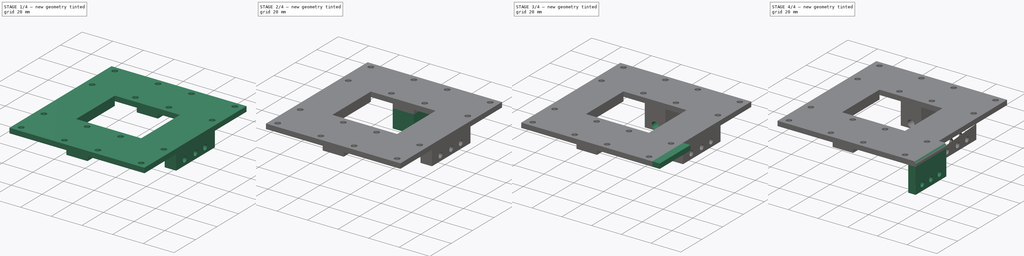
[diagram: build sequence overview — one tinted view per stage of 4, left to right]
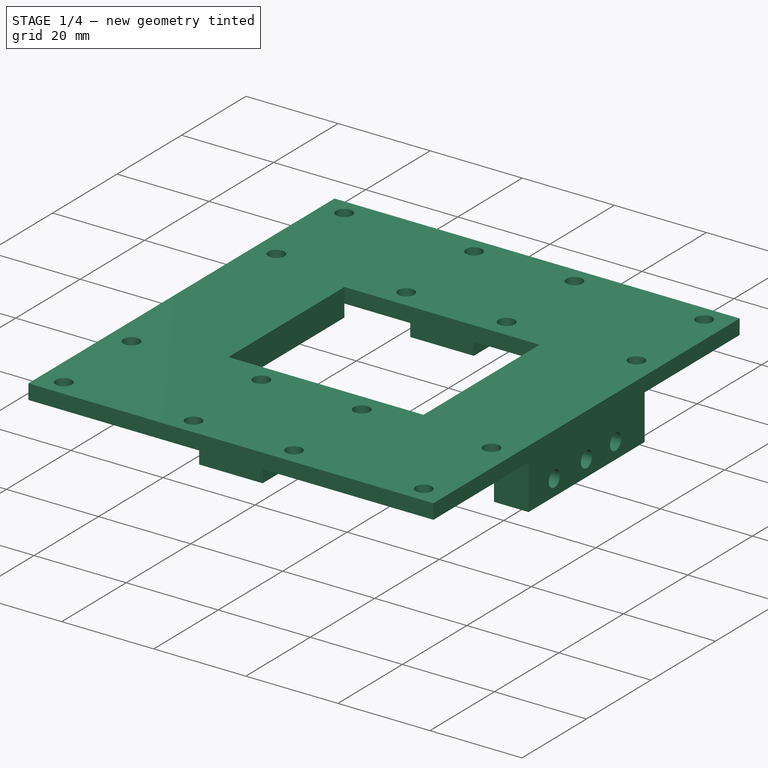
[diagram: stage 1 of 4 — iso view after this stage's code; geometry added in this stage tinted green]
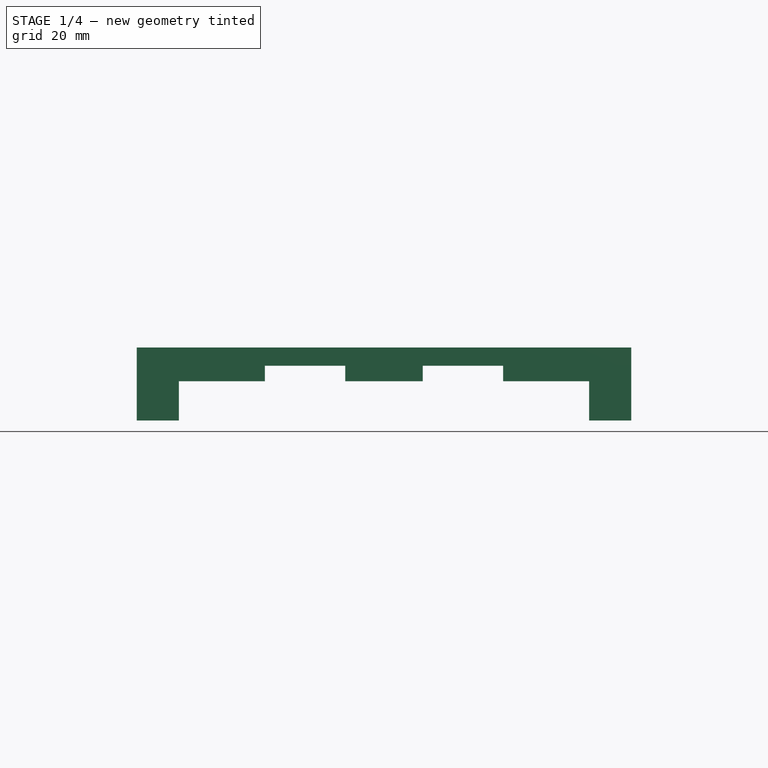
[diagram: stage 1 of 4 — front view after this stage's code; geometry added in this stage tinted green]
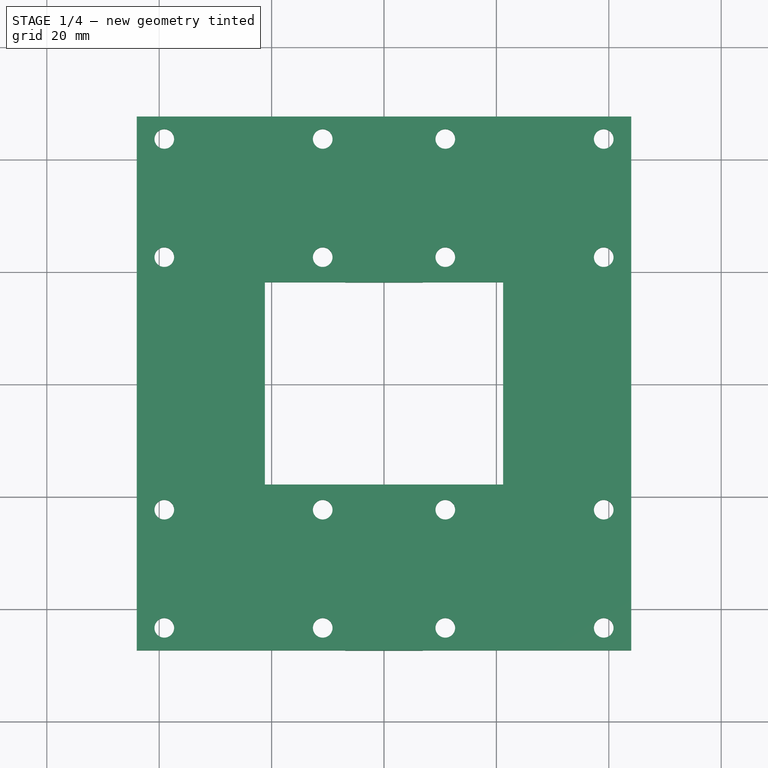
[diagram: stage 1 of 4 — top view after this stage's code; geometry added in this stage tinted green]
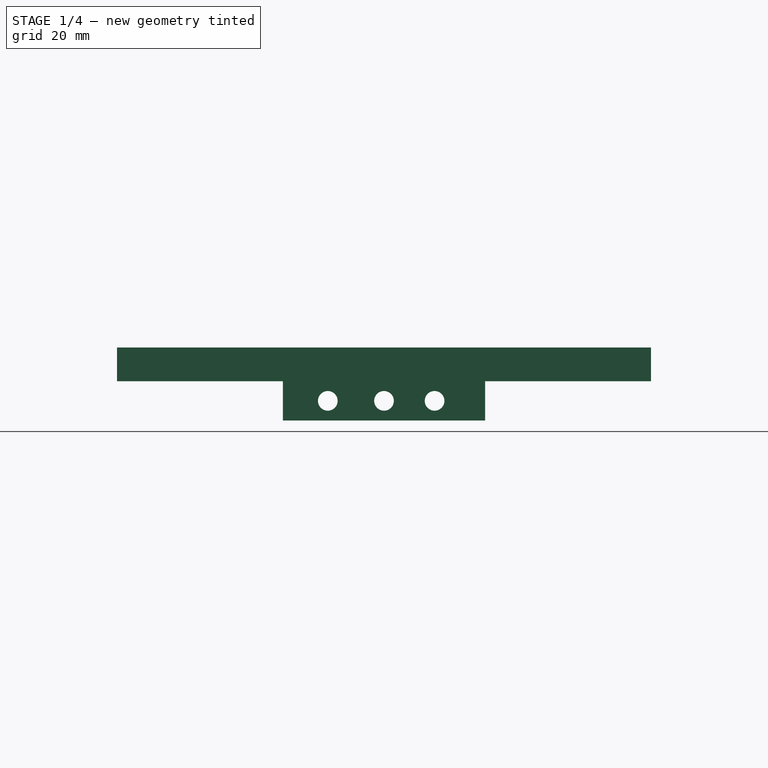
[diagram: stage 1 of 4 — right view after this stage's code; geometry added in this stage tinted green]
FCSTD DOCUMENT  (FreeCAD 0.17R12955 (Git))
Label: TC-H01-Base
License: All rights reserved
LicenseURL: http://en.wikipedia.org/wiki/All_rights_reserved
objects: Sketcher::SketchObject×13, PartDesign::Pocket×8, PartDesign::Pad×5, Part::FeaturePython×2, PartDesign::Fillet×1, PartDesign::Body×1
note: 43 computed .brp shape members not serialized (recipe doc carries the construction recipe); baked Part::Feature solids carry a one-line shape summary decoded from their .brp

FEATURE [Sketcher::SketchObject] Sketch013  label="Base001"
  MapMode = 5
  sketch-geometry (24):
    g0: LineSegment StartX=-44 StartY=47.5 StartZ=0 EndX=44 EndY=47.5 EndZ=0
    g1: LineSegment StartX=44 StartY=47.5 StartZ=0 EndX=44 EndY=-47.5 EndZ=0
    g2: LineSegment StartX=44 StartY=-47.5 StartZ=0 EndX=-44 EndY=-47.5 EndZ=0
    g3: LineSegment StartX=-44 StartY=-47.5 StartZ=0 EndX=-44 EndY=47.5 EndZ=0
    g4: Circle CenterX=-39.0963 CenterY=43.5 CenterZ=0 NormalX=0 NormalY=0 NormalZ=1 AngleXU=0 Radius=1.75
    g5: Circle CenterX=-39.0963 CenterY=22.4695 CenterZ=0 NormalX=0 NormalY=0 NormalZ=1 AngleXU=0 Radius=1.75
    g6: Circle CenterX=-10.9036 CenterY=22.4695 CenterZ=0 NormalX=0 NormalY=0 NormalZ=1 AngleXU=0 Radius=1.75
    g7: Circle CenterX=-10.9036 CenterY=43.5 CenterZ=0 NormalX=0 NormalY=0 NormalZ=1 AngleXU=0 Radius=1.75
    g8: Circle CenterX=10.9036 CenterY=43.5 CenterZ=0 NormalX=0 NormalY=0 NormalZ=1 AngleXU=0 Radius=1.75
    g9: Circle CenterX=10.9036 CenterY=22.4695 CenterZ=0 NormalX=0 NormalY=0 NormalZ=1 AngleXU=0 Radius=1.75
    g10: Circle CenterX=39.0963 CenterY=43.5 CenterZ=0 NormalX=0 NormalY=0 NormalZ=1 AngleXU=0 Radius=1.75
    g11: Circle CenterX=39.0963 CenterY=22.4695 CenterZ=0 NormalX=0 NormalY=0 NormalZ=1 AngleXU=0 Radius=1.75
    g12: Circle CenterX=-39.0963 CenterY=-22.4695 CenterZ=0 NormalX=0 NormalY=0 NormalZ=1 AngleXU=0 Radius=1.75
    g13: Circle CenterX=-10.9036 CenterY=-22.4695 CenterZ=0 NormalX=0 NormalY=0 NormalZ=1 AngleXU=0 Radius=1.75
    g14: Circle CenterX=-39.0963 CenterY=-43.5 CenterZ=0 NormalX=0 NormalY=0 NormalZ=1 AngleXU=0 Radius=1.75
    g15: Circle CenterX=-10.9036 CenterY=-43.5 CenterZ=0 NormalX=0 NormalY=0 NormalZ=1 AngleXU=0 Radius=1.75
    g16: Circle CenterX=10.9036 CenterY=-22.4695 CenterZ=0 NormalX=0 NormalY=0 NormalZ=1 AngleXU=0 Radius=1.75
    g17: Circle CenterX=10.9036 CenterY=-43.5 CenterZ=0 NormalX=0 NormalY=0 NormalZ=1 AngleXU=0 Radius=1.75
    g18: Circle CenterX=39.0963 CenterY=-22.4695 CenterZ=0 NormalX=0 NormalY=0 NormalZ=1 AngleXU=0 Radius=1.75
    g19: Circle CenterX=39.0963 CenterY=-43.5 CenterZ=0 NormalX=0 NormalY=0 NormalZ=1 AngleXU=0 Radius=1.75
    g20: LineSegment StartX=-21.2 StartY=18 StartZ=0 EndX=21.2 EndY=18 EndZ=0
    g21: LineSegment StartX=21.2 StartY=18 StartZ=0 EndX=21.2 EndY=-18 EndZ=0
    g22: LineSegment StartX=21.2 StartY=-18 StartZ=0 EndX=-21.2 EndY=-18 EndZ=0
    g23: LineSegment StartX=-21.2 StartY=-18 StartZ=0 EndX=-21.2 EndY=18 EndZ=0
  constraints (58):
    c: Coincident(g0,g1)
    c: Coincident(g1,g2)
    c: Coincident(g2,g3)
    c: Coincident(g3,g0)
    c: Horizontal(g0)
    c: Horizontal(g2)
    c: Vertical(g1)
    c: Vertical(g3)
    c: DistanceX(g0,g0) = 88
    c: DistanceY(g2,g0) = 95
    c: Symmetric(g0,g0,g-2)
    c: Symmetric(g2,g0,g-1)
    c: Radius(g4) = 1.75
    c: Equal(g4, g5-g19) x15
    c: DistanceY(g4,g0) = 4
    c: DistanceY(g5,g4) = 21.0305
    c: DistanceY(g6,g7) = 21.0305
    c: DistanceY(g9,g8) = 21.0305
    c: DistanceY(g11,g10) = 21.0305
    c: DistanceY(g14,g12) = 21.0305
    c: DistanceY(g15,g13) = 21.0305
    c: DistanceY(g17,g16) = 21.0305
    c: DistanceY(g19,g18) = 21.0305
    c: DistanceX(g4,g7) = 28.1927
    c: DistanceX(g5,g6) = 28.1927
    c: DistanceY(g7,g0) = 4
    c: DistanceY(g10,g0) = 4
    c: DistanceY(g8,g0) = 4
    c: DistanceX(g8,g10) = 28.1927
    c: DistanceX(g9,g11) = 28.1927
    c: DistanceX(g16,g18) = 28.1927
    c: DistanceX(g17,g19) = 28.1927
    c: DistanceY(g1,g19) = 4
    c: DistanceY(g1,g17) = 4
    c: DistanceY(g2,g14) = 4
    c: DistanceY(g2,g15) = 4
    c: DistanceX(g12,g13) = 28.1927
    c: DistanceX(g14,g15) = 28.1927
    c: Coincident(g20,g21)
    c: Coincident(g21,g22)
    c: Coincident(g22,g23)
    c: Coincident(g23,g20)
    c: Horizontal(g20)
    c: Horizontal(g22)
    c: Vertical(g21)
    c: Vertical(g23)
    c: DistanceX(g0,g20) = 22.8
    c: DistanceX(g20,g0) = 22.8
    c: DistanceY(g1,g21) = 29.5
    c: DistanceY(g20,g0) = 29.5
    c: DistanceX(g7,g-1) = 10.9036
    c: DistanceX(g6,g-1) = 10.9036
    c: DistanceX(g-1,g8) = 10.9036
    c: DistanceX(g-1,g9) = 10.9036
    c: DistanceX(g13,g-1) = 10.9036
    c: DistanceX(g15,g-1) = 10.9036
    c: DistanceX(g-1,g16) = 10.9036
    c: DistanceX(g-1,g17) = 10.9036
FEATURE [PartDesign::Pad] Pad  label="Base"
  Length = 6
  Length2 = 100
  Profile = -> Sketch013
  Type = 0
FEATURE [Sketcher::SketchObject] Sketch
  ExternalGeometry = -> [Pad]
  MapMode = 5
  Placement = pos=(0,0,0) rot=(1,0,0;3.14159rad)
  Support = -> [Pad]
  sketch-geometry (16):
    g0: LineSegment StartX=-44 StartY=-18 StartZ=0 EndX=-6.9 EndY=-18 EndZ=0
    g1: LineSegment StartX=-6.9 StartY=-18 StartZ=0 EndX=-6.9 EndY=-47.5 EndZ=0
    g2: LineSegment StartX=-6.9 StartY=-47.5 StartZ=0 EndX=-44 EndY=-47.5 EndZ=0
    g3: LineSegment StartX=-44 StartY=-47.5 StartZ=0 EndX=-44 EndY=-18 EndZ=0
    g4: LineSegment StartX=6.9 StartY=-18 StartZ=0 EndX=44 EndY=-18 EndZ=0
    g5: LineSegment StartX=44 StartY=-18 StartZ=0 EndX=44 EndY=-47.5 EndZ=0
    g6: LineSegment StartX=44 StartY=-47.5 StartZ=0 EndX=6.9 EndY=-47.5 EndZ=0
    g7: LineSegment StartX=6.9 StartY=-47.5 StartZ=0 EndX=6.9 EndY=-18 EndZ=0
    g8: LineSegment StartX=-44 StartY=47.5 StartZ=0 EndX=-6.9 EndY=47.5 EndZ=0
    g9: LineSegment StartX=-6.9 StartY=47.5 StartZ=0 EndX=-6.9 EndY=18 EndZ=0
    g10: LineSegment StartX=-6.9 StartY=18 StartZ=0 EndX=-44 EndY=18 EndZ=0
    g11: LineSegment StartX=-44 StartY=18 StartZ=0 EndX=-44 EndY=47.5 EndZ=0
    g12: LineSegment StartX=6.9 StartY=47.5 StartZ=0 EndX=44 EndY=47.5 EndZ=0
    g13: LineSegment StartX=44 StartY=47.5 StartZ=0 EndX=44 EndY=18 EndZ=0
    g14: LineSegment StartX=44 StartY=18 StartZ=0 EndX=6.9 EndY=18 EndZ=0
    g15: LineSegment StartX=6.9 StartY=18 StartZ=0 EndX=6.9 EndY=47.5 EndZ=0
  constraints (44):
    c: Coincident(g0,g1)
    c: Coincident(g1,g2)
    c: Coincident(g2,g3)
    c: Coincident(g3,g0)
    c: Horizontal(g0)
    c: Horizontal(g2)
    c: Vertical(g1)
    c: Vertical(g3)
    c: DistanceY(g2,g0) = 29.5
    c: DistanceX(g0,g0) = 37.1
    c: Coincident(g2,g-4)
    c: Coincident(g4,g5)
    c: Coincident(g5,g6)
    c: Coincident(g6,g7)
    c: Coincident(g7,g4)
    c: Horizontal(g4)
    c: Horizontal(g6)
    c: Vertical(g5)
    c: Vertical(g7)
    c: DistanceX(g4,g4) = 37.1
    c: DistanceY(g5,g4) = 29.5
    c: Coincident(g5,g-4)
    c: Coincident(g8,g9)
    c: Coincident(g9,g10)
    c: Coincident(g10,g11)
    c: Coincident(g11,g8)
    c: Horizontal(g8)
    c: Horizontal(g10)
    c: Vertical(g9)
    c: Vertical(g11)
    c: DistanceX(g8,g8) = 37.1
    c: DistanceY(g10,g8) = 29.5
    c: Coincident(g8,g-3)
    c: Coincident(g12,g13)
    c: Coincident(g13,g14)
    c: Coincident(g14,g15)
    c: Coincident(g15,g12)
    c: Horizontal(g12)
    c: Horizontal(g14)
    c: Vertical(g13)
    c: Vertical(g15)
    c: DistanceX(g12,g12) = 37.1
    c: DistanceY(g13,g12) = 29.5
    c: Coincident(g12,g-5)
FEATURE [PartDesign::Pocket] Pocket  label="Bearing inserts"
  BaseFeature = -> Pad
  Length = 2.75
  Profile = -> Sketch
  Type = 0
FEATURE [Sketcher::SketchObject] Sketch014
  ExternalGeometry = -> [Pocket]
  MapMode = 5
  Placement = pos=(0,0,0) rot=(1,0,0;3.14159rad)
  Support = -> [Pocket]
  sketch-geometry (8):
    g0: LineSegment StartX=-44 StartY=18 StartZ=0 EndX=-36.5 EndY=18 EndZ=0
    g1: LineSegment StartX=-36.5 StartY=18 StartZ=0 EndX=-36.5 EndY=-18 EndZ=0
    g2: LineSegment StartX=-36.5 StartY=-18 StartZ=0 EndX=-44 EndY=-18 EndZ=0
    g3: LineSegment StartX=-44 StartY=-18 StartZ=0 EndX=-44 EndY=18 EndZ=0
    g4: LineSegment StartX=36.5 StartY=18 StartZ=0 EndX=44 EndY=18 EndZ=0
    g5: LineSegment StartX=44 StartY=18 StartZ=0 EndX=44 EndY=-18 EndZ=0
    g6: LineSegment StartX=44 StartY=-18 StartZ=0 EndX=36.5 EndY=-18 EndZ=0
    g7: LineSegment StartX=36.5 StartY=-18 StartZ=0 EndX=36.5 EndY=18 EndZ=0
  constraints (22):
    c: Coincident(g0,g1)
    c: Coincident(g1,g2)
    c: Coincident(g2,g3)
    c: Coincident(g3,g0)
    c: Horizontal(g0)
    c: Horizontal(g2)
    c: Vertical(g1)
    c: Vertical(g3)
    c: Coincident(g4,g5)
    c: Coincident(g5,g6)
    c: Coincident(g6,g7)
    c: Coincident(g7,g4)
    c: Horizontal(g4)
    c: Horizontal(g6)
    c: Vertical(g5)
    c: Vertical(g7)
    c: DistanceX(g0,g0) = 7.5
    c: DistanceX(g4,g4) = 7.5
    c: Coincident(g0,g-3)
    c: Coincident(g2,g-4)
    c: Coincident(g4,g-6)
    c: Coincident(g5,g-5)
FEATURE [PartDesign::Pad] Pad001  label="Fan mounts"
  BaseFeature = -> Pocket
  Length = 7
  Length2 = 100
  Profile = -> Sketch014
  Type = 0
FEATURE [Sketcher::SketchObject] Sketch015
  ExternalGeometry = -> [Pad001]
  MapMode = 5
  Placement = pos=(44,0,0) rot=(0.57735,0.57735,0.57735;2.0944rad)
  Support = -> [Pad001]
  sketch-geometry (3):
    g0: Circle CenterX=-10 CenterY=-3.5 CenterZ=0 NormalX=0 NormalY=0 NormalZ=1 AngleXU=0 Radius=1.75
    g1: Circle CenterX=0 CenterY=-3.5 CenterZ=0 NormalX=0 NormalY=0 NormalZ=1 AngleXU=0 Radius=1.75
    g2: Circle CenterX=9 CenterY=-3.5 CenterZ=0 NormalX=0 NormalY=0 NormalZ=1 AngleXU=0 Radius=1.75
  constraints (9):
    c: Radius(g0) = 1.75
    c: Radius(g2) = 1.75
    c: Equal(g2,g1)
    c: PointOnObject(g1,g-2)
    c: DistanceY(g0,g-3) = 3.5
    c: DistanceY(g1,g-1) = 3.5
    c: DistanceY(g2,g-4) = 3.5
    c: DistanceX(g0,g-1) = 10
    c: DistanceX(g-1,g2) = 9
FEATURE [PartDesign::Pocket] Pocket001  label="Fan mount holes"
  BaseFeature = -> Pad001
  Length = 5
  Profile = -> Sketch015
  Type = 1
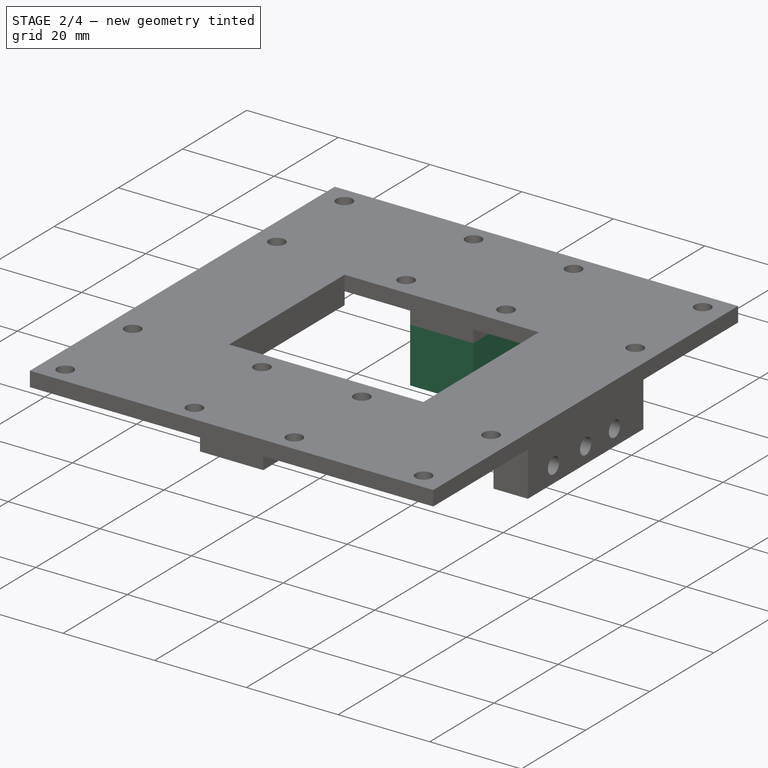
[diagram: stage 2 of 4 — iso view after this stage's code; geometry added in this stage tinted green]
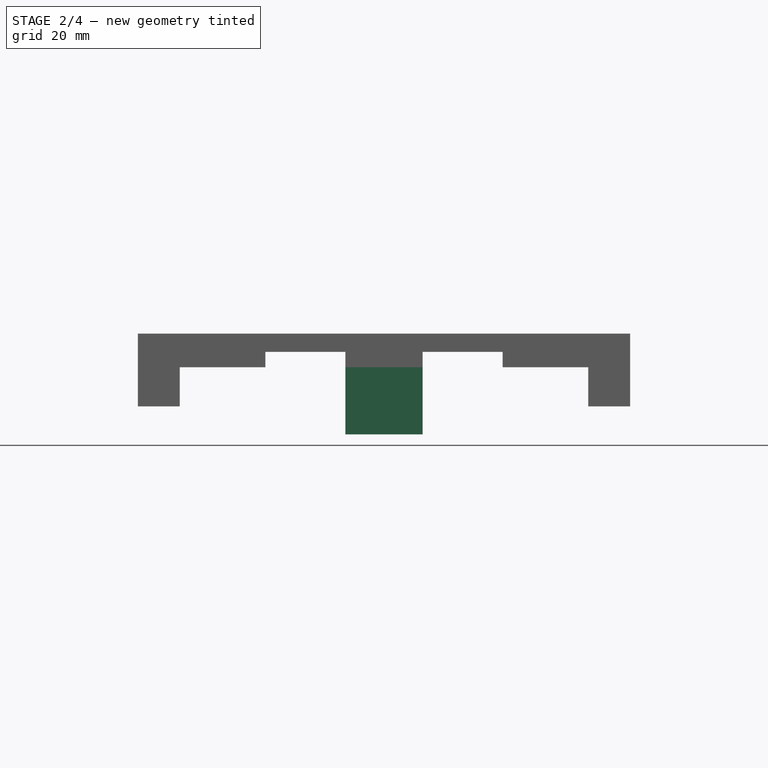
[diagram: stage 2 of 4 — front view after this stage's code; geometry added in this stage tinted green]
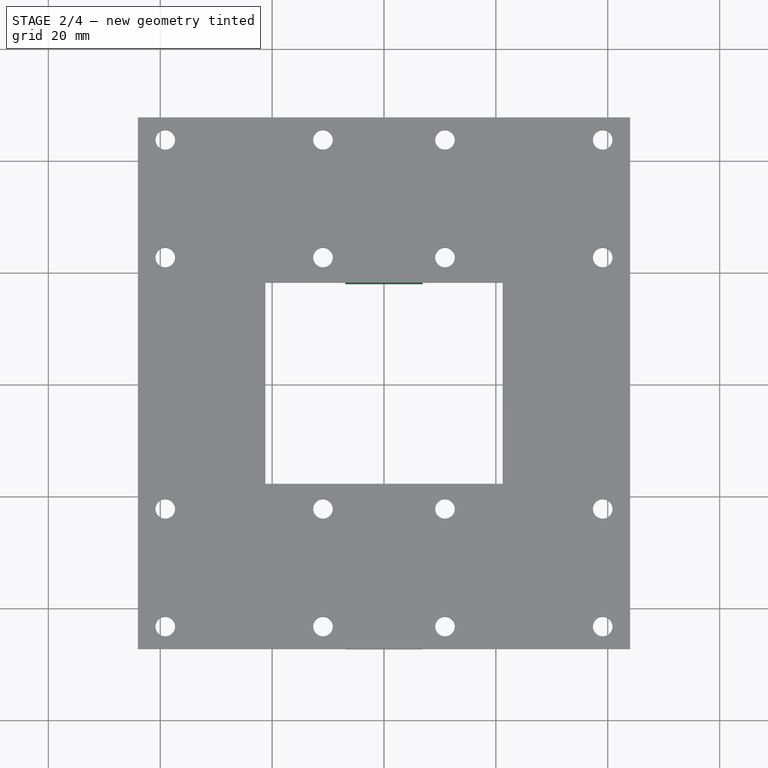
[diagram: stage 2 of 4 — top view after this stage's code; geometry added in this stage tinted green]
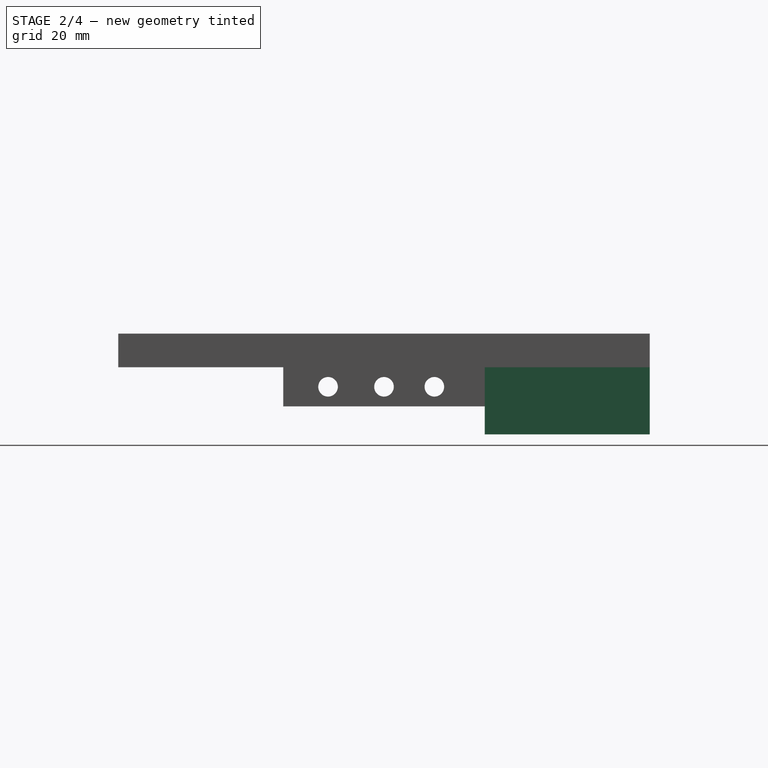
[diagram: stage 2 of 4 — right view after this stage's code; geometry added in this stage tinted green]
FEATURE [Sketcher::SketchObject] Sketch016
  ExternalGeometry = -> [Pocket001]
  MapMode = 5
  Placement = pos=(-36.5,0,0) rot=(0.57735,0.57735,0.57735;2.0944rad)
  Support = -> [Pocket001]
  sketch-geometry (21):
    g0: LineSegment StartX=-8.4 StartY=-6.27128 StartZ=0 EndX=-6.8 EndY=-3.5 EndZ=0
    g1: LineSegment StartX=-6.8 StartY=-3.5 StartZ=0 EndX=-8.4 EndY=-0.728719 EndZ=0
    g2: LineSegment StartX=-8.4 StartY=-0.728719 StartZ=0 EndX=-11.6 EndY=-0.728719 EndZ=0
    g3: LineSegment StartX=-11.6 StartY=-0.728719 StartZ=0 EndX=-13.2 EndY=-3.5 EndZ=0
    g4: LineSegment StartX=-13.2 StartY=-3.5 StartZ=0 EndX=-11.6 EndY=-6.27128 EndZ=0
    g5: LineSegment StartX=-11.6 StartY=-6.27128 StartZ=0 EndX=-8.4 EndY=-6.27128 EndZ=0
    g6: Circle [constr] CenterX=-10 CenterY=-3.5 CenterZ=0 NormalX=0 NormalY=0 NormalZ=1 AngleXU=0 Radius=3.2
    g7: LineSegment StartX=1.6 StartY=-6.27128 StartZ=0 EndX=3.2 EndY=-3.5 EndZ=0
    g8: LineSegment StartX=3.2 StartY=-3.5 StartZ=0 EndX=1.6 EndY=-0.728719 EndZ=0
    g9: LineSegment StartX=1.6 StartY=-0.728719 StartZ=0 EndX=-1.6 EndY=-0.728719 EndZ=0
    g10: LineSegment StartX=-1.6 StartY=-0.728719 StartZ=0 EndX=-3.2 EndY=-3.5 EndZ=0
    g11: LineSegment StartX=-3.2 StartY=-3.5 StartZ=0 EndX=-1.6 EndY=-6.27128 EndZ=0
    g12: LineSegment StartX=-1.6 StartY=-6.27128 StartZ=0 EndX=1.6 EndY=-6.27128 EndZ=0
    g13: Circle [constr] CenterX=0 CenterY=-3.5 CenterZ=0 NormalX=0 NormalY=0 NormalZ=1 AngleXU=0 Radius=3.2
    g14: LineSegment StartX=10.6 StartY=-6.27128 StartZ=0 EndX=12.2 EndY=-3.5 EndZ=0
    g15: LineSegment StartX=12.2 StartY=-3.5 StartZ=0 EndX=10.6 EndY=-0.728719 EndZ=0
    g16: LineSegment StartX=10.6 StartY=-0.728719 StartZ=0 EndX=7.4 EndY=-0.728719 EndZ=0
    g17: LineSegment StartX=7.4 StartY=-0.728719 StartZ=0 EndX=5.8 EndY=-3.5 EndZ=0
    g18: LineSegment StartX=5.8 StartY=-3.5 StartZ=0 EndX=7.4 EndY=-6.27128 EndZ=0
    g19: LineSegment StartX=7.4 StartY=-6.27128 StartZ=0 EndX=10.6 EndY=-6.27128 EndZ=0
    g20: Circle [constr] CenterX=9 CenterY=-3.5 CenterZ=0 NormalX=0 NormalY=0 NormalZ=1 AngleXU=0 Radius=3.2
  constraints (48):
    c: Coincident(g0,g1)
    c: Coincident(g1,g2)
    c: Coincident(g2,g3)
    c: Coincident(g3,g4)
    c: Coincident(g4,g5)
    c: Coincident(g5,g0)
    c: Equal(g0, g1-g5) x5
    c: PointOnObject(g0,g6)
    c: PointOnObject(g1,g6)
    c: PointOnObject(g2,g6)
    c: PointOnObject(g3,g6)
    c: PointOnObject(g4,g6)
    c: PointOnObject(g5,g6)
    c: Coincident(g-3,g6)
    c: Coincident(g7,g8)
    c: Coincident(g8,g9)
    c: Coincident(g9,g10)
    c: Coincident(g10,g11)
    c: Coincident(g11,g12)
    c: Coincident(g12,g7)
    c: Equal(g7, g8-g12) x5
    c: PointOnObject(g7,g13)
    c: PointOnObject(g8,g13)
    c: PointOnObject(g9,g13)
    c: PointOnObject(g10,g13)
    c: PointOnObject(g11,g13)
    c: PointOnObject(g12,g13)
    c: Coincident(g13,g-4)
    c: Coincident(g14,g15)
    c: Coincident(g15,g16)
    c: Coincident(g16,g17)
    c: Coincident(g17,g18)
    c: Coincident(g18,g19)
    c: Coincident(g19,g14)
    c: Equal(g14, g15-g19) x5
    c: PointOnObject(g14,g20)
    c: PointOnObject(g15,g20)
    c: PointOnObject(g16,g20)
    c: PointOnObject(g17,g20)
    c: PointOnObject(g18,g20)
    c: PointOnObject(g19,g20)
    c: Coincident(g20,g-5)
    c: Radius(g20) = 3.2
    c: Equal(g20,g13)
    c: Equal(g20,g6)
    c: Parallel(g2,g-1)
    c: Parallel(g9,g-1)
    c: Parallel(g16,g-1)
FEATURE [PartDesign::Pocket] Pocket002  label="Fan M3 nuts001"
  BaseFeature = -> Pocket001
  Length = 2.5
  Profile = -> Sketch016
  Type = 0
FEATURE [Sketcher::SketchObject] Sketch017
  ExternalGeometry = -> [Pocket002]
  MapMode = 5
  Placement = pos=(36.5,0,0) rot=(0.57735,-0.57735,-0.57735;2.0944rad)
  Support = -> [Pocket002]
  sketch-geometry (21):
    g0: LineSegment StartX=-5.8 StartY=-3.5 StartZ=0 EndX=-7.4 EndY=-0.728719 EndZ=0
    g1: LineSegment StartX=-7.4 StartY=-0.728719 StartZ=0 EndX=-10.6 EndY=-0.728719 EndZ=0
    g2: LineSegment StartX=-10.6 StartY=-0.728719 StartZ=0 EndX=-12.2 EndY=-3.5 EndZ=0
    g3: LineSegment StartX=-12.2 StartY=-3.5 StartZ=0 EndX=-10.6 EndY=-6.27128 EndZ=0
    g4: LineSegment StartX=-10.6 StartY=-6.27128 StartZ=0 EndX=-7.4 EndY=-6.27128 EndZ=0
    g5: LineSegment StartX=-7.4 StartY=-6.27128 StartZ=0 EndX=-5.8 EndY=-3.5 EndZ=0
    g6: Circle [constr] CenterX=-9 CenterY=-3.5 CenterZ=0 NormalX=0 NormalY=0 NormalZ=1 AngleXU=0 Radius=3.2
    g7: LineSegment StartX=1.6 StartY=-6.27128 StartZ=0 EndX=3.2 EndY=-3.5 EndZ=0
    g8: LineSegment StartX=3.2 StartY=-3.5 StartZ=0 EndX=1.6 EndY=-0.728719 EndZ=0
    g9: LineSegment StartX=1.6 StartY=-0.728719 StartZ=0 EndX=-1.6 EndY=-0.728719 EndZ=0
    g10: LineSegment StartX=-1.6 StartY=-0.728719 StartZ=0 EndX=-3.2 EndY=-3.5 EndZ=0
    g11: LineSegment StartX=-3.2 StartY=-3.5 StartZ=0 EndX=-1.6 EndY=-6.27128 EndZ=0
    g12: LineSegment StartX=-1.6 StartY=-6.27128 StartZ=0 EndX=1.6 EndY=-6.27128 EndZ=0
    g13: Circle [constr] CenterX=0 CenterY=-3.5 CenterZ=0 NormalX=0 NormalY=0 NormalZ=1 AngleXU=0 Radius=3.2
    g14: LineSegment StartX=11.6 StartY=-6.27128 StartZ=0 EndX=13.2 EndY=-3.5 EndZ=0
    g15: LineSegment StartX=13.2 StartY=-3.5 StartZ=0 EndX=11.6 EndY=-0.728719 EndZ=0
    g16: LineSegment StartX=11.6 StartY=-0.728719 StartZ=0 EndX=8.4 EndY=-0.728719 EndZ=0
    g17: LineSegment StartX=8.4 StartY=-0.728719 StartZ=0 EndX=6.8 EndY=-3.5 EndZ=0
    g18: LineSegment StartX=6.8 StartY=-3.5 StartZ=0 EndX=8.4 EndY=-6.27128 EndZ=0
    g19: LineSegment StartX=8.4 StartY=-6.27128 StartZ=0 EndX=11.6 EndY=-6.27128 EndZ=0
    g20: Circle [constr] CenterX=10 CenterY=-3.5 CenterZ=0 NormalX=0 NormalY=0 NormalZ=1 AngleXU=0 Radius=3.2
  constraints (48):
    c: Coincident(g0,g1)
    c: Coincident(g1,g2)
    c: Coincident(g2,g3)
    c: Coincident(g3,g4)
    c: Coincident(g4,g5)
    c: Coincident(g5,g0)
    c: Equal(g0, g1-g5) x5
    c: PointOnObject(g0,g6)
    c: PointOnObject(g1,g6)
    c: PointOnObject(g2,g6)
    c: PointOnObject(g3,g6)
    c: PointOnObject(g4,g6)
    c: PointOnObject(g5,g6)
    c: Coincident(g7,g8)
    c: Coincident(g8,g9)
    c: Coincident(g9,g10)
    c: Coincident(g10,g11)
    c: Coincident(g11,g12)
    c: Coincident(g12,g7)
    c: Equal(g7, g8-g12) x5
    c: PointOnObject(g7,g13)
    c: PointOnObject(g8,g13)
    c: PointOnObject(g9,g13)
    c: PointOnObject(g10,g13)
    c: PointOnObject(g11,g13)
    c: PointOnObject(g12,g13)
    c: Coincident(g14,g15)
    c: Coincident(g15,g16)
    c: Coincident(g16,g17)
    c: Coincident(g17,g18)
    c: Coincident(g18,g19)
    c: Coincident(g19,g14)
    c: Equal(g14, g15-g19) x5
    c: PointOnObject(g14,g20)
    c: PointOnObject(g15,g20)
    c: PointOnObject(g16,g20)
    c: PointOnObject(g17,g20)
    c: PointOnObject(g18,g20)
    c: PointOnObject(g19,g20)
    c: Radius(g6) = 3.2
    c: Equal(g6,g13)
    c: Equal(g6,g20)
    c: Coincident(g6,g-3)
    c: Coincident(g13,g-4)
    c: Coincident(g20,g-5)
    c: Parallel(g1,g-1)
    c: Parallel(g9,g-1)
    c: Parallel(g16,g-1)
FEATURE [PartDesign::Pocket] Pocket003  label="Fan M3 nuts002"
  BaseFeature = -> Pocket002
  Length = 2.5
  Profile = -> Sketch017
  Type = 0
FEATURE [Sketcher::SketchObject] Sketch018
  ExternalGeometry = -> [Pocket003]
  MapMode = 5
  Placement = pos=(0,0,0) rot=(1,0,0;3.14159rad)
  Support = -> [Pocket003]
  sketch-geometry (6):
    g0: LineSegment StartX=-6.9 StartY=-18 StartZ=0 EndX=6.9 EndY=-18 EndZ=0
    g1: LineSegment StartX=6.9 StartY=-18 StartZ=0 EndX=6.9 EndY=-47.5 EndZ=0
    g2: LineSegment StartX=6.9 StartY=-47.5 StartZ=0 EndX=-6.9 EndY=-47.5 EndZ=0
    g3: LineSegment StartX=-6.9 StartY=-47.5 StartZ=0 EndX=-6.9 EndY=-18 EndZ=0
    g4: Circle CenterX=-3.5 CenterY=-42.5 CenterZ=0 NormalX=0 NormalY=0 NormalZ=1 AngleXU=0 Radius=0.85
    g5: Circle CenterX=3.5 CenterY=-42.5 CenterZ=0 NormalX=0 NormalY=0 NormalZ=1 AngleXU=0 Radius=0.85
  constraints (15):
    c: Coincident(g0,g1)
    c: Coincident(g1,g2)
    c: Coincident(g2,g3)
    c: Coincident(g3,g0)
    c: Horizontal(g0)
    c: Horizontal(g2)
    c: Vertical(g1)
    c: Vertical(g3)
    c: Coincident(g0,g-3)
    c: Coincident(g1,g-4)
    c: Radius(g4) = 0.85
    c: Equal(g4,g5)
    c: DistanceX(g4,g5) = 7
    c: Symmetric(g4,g5,g-2)
    c: DistanceY(g2,g4) = 5
FEATURE [PartDesign::Pad] Pad002  label="X-endstop mounting block"
  BaseFeature = -> Pocket003
  Length = 12
  Length2 = 100
  Profile = -> Sketch018
  Type = 0
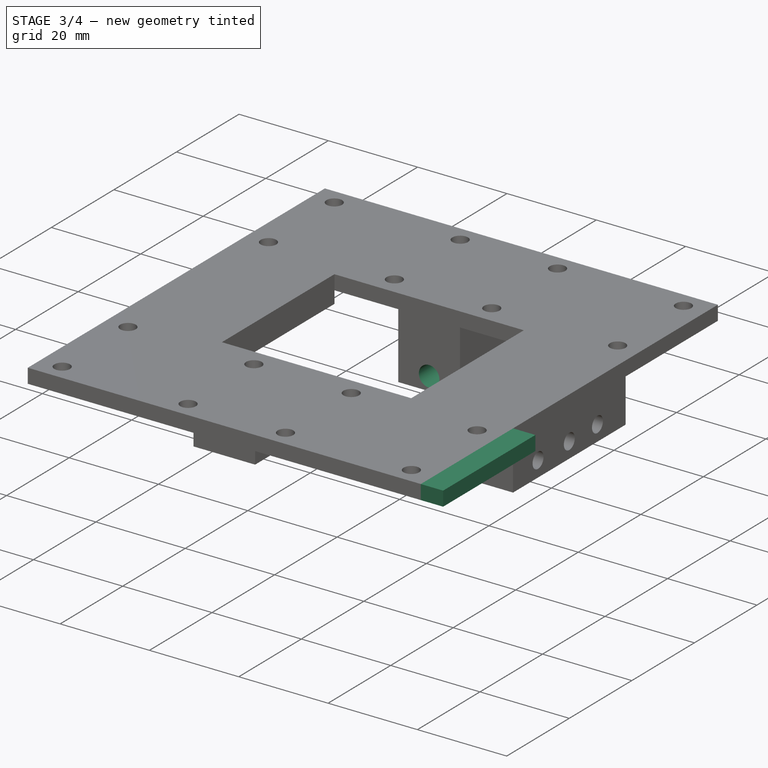
[diagram: stage 3 of 4 — iso view after this stage's code; geometry added in this stage tinted green]
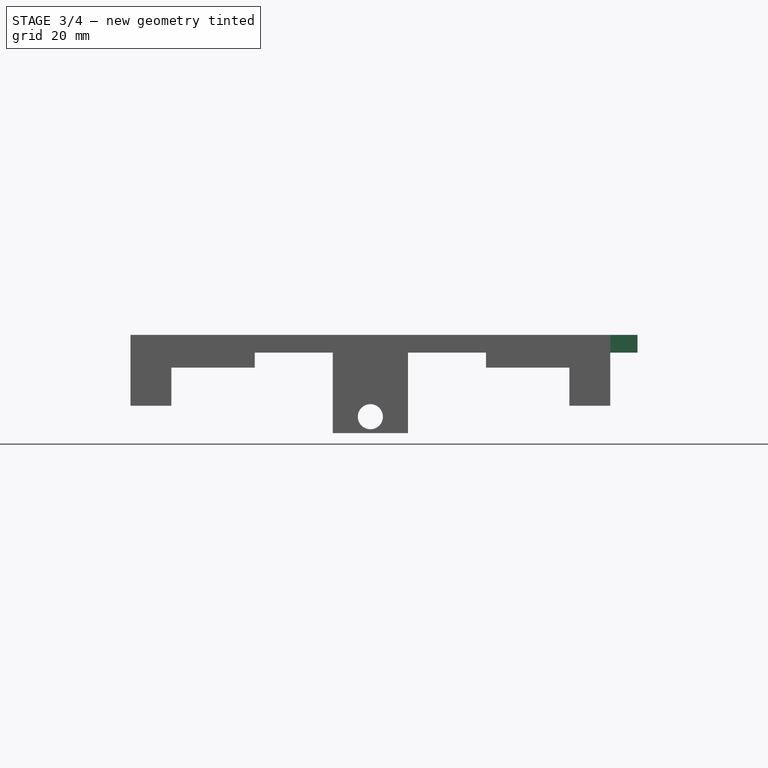
[diagram: stage 3 of 4 — front view after this stage's code; geometry added in this stage tinted green]
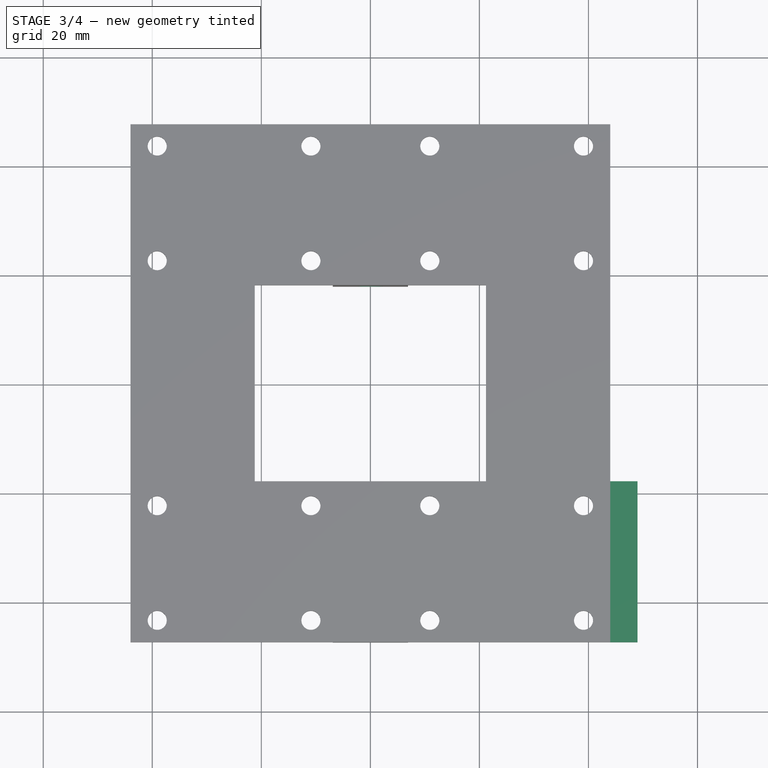
[diagram: stage 3 of 4 — top view after this stage's code; geometry added in this stage tinted green]
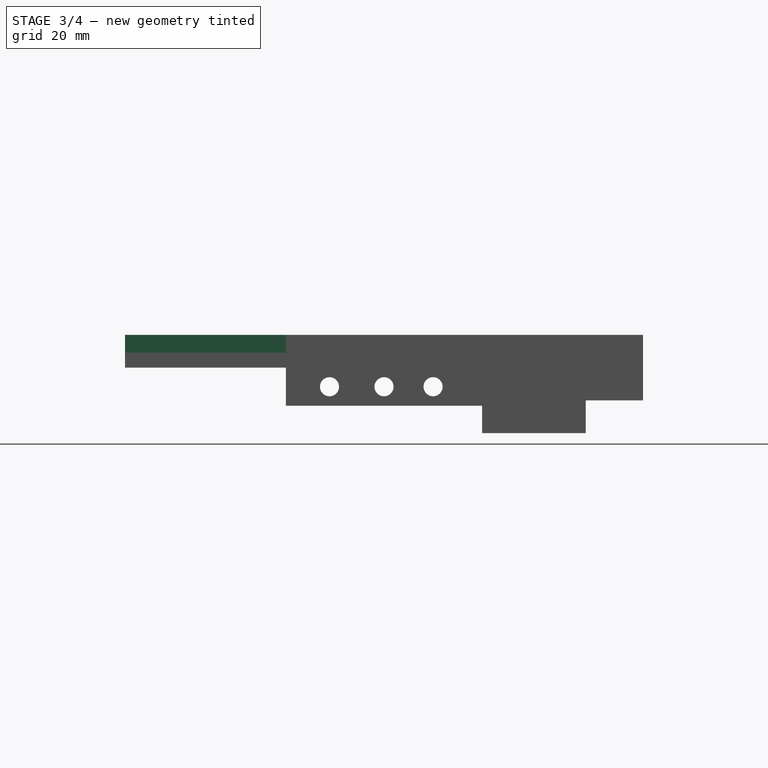
[diagram: stage 3 of 4 — right view after this stage's code; geometry added in this stage tinted green]
FEATURE [Sketcher::SketchObject] Sketch019
  ExternalGeometry = -> [Pad002]
  MapMode = 5
  Placement = pos=(0,0,-12) rot=(1,0,0;3.14159rad)
  Support = -> [Pad002]
  sketch-geometry (4):
    g0: LineSegment StartX=-6.9 StartY=-37 StartZ=0 EndX=6.9 EndY=-37 EndZ=0
    g1: LineSegment StartX=6.9 StartY=-37 StartZ=0 EndX=6.9 EndY=-47.5 EndZ=0
    g2: LineSegment StartX=6.9 StartY=-47.5 StartZ=0 EndX=-6.9 EndY=-47.5 EndZ=0
    g3: LineSegment StartX=-6.9 StartY=-47.5 StartZ=0 EndX=-6.9 EndY=-37 EndZ=0
  constraints (11):
    c: Coincident(g0,g1)
    c: Coincident(g1,g2)
    c: Coincident(g2,g3)
    c: Coincident(g3,g0)
    c: Horizontal(g0)
    c: Horizontal(g2)
    c: Vertical(g1)
    c: Vertical(g3)
    c: DistanceY(g1,g0) = 10.5
    c: Coincident(g2,g-3)
    c: Coincident(g1,g-3)
FEATURE [PartDesign::Pocket] Pocket004  label="X-endstop insert"
  BaseFeature = -> Pad002
  Length = 6
  Profile = -> Sketch019
  Type = 0
FEATURE [Sketcher::SketchObject] Sketch020
  ExternalGeometry = -> [Pocket004]
  MapMode = 5
  Placement = pos=(0,37,0) rot=(0,0.707107,0.707107;3.14159rad)
  Support = -> [Pocket004]
  sketch-geometry (1):
    g0: Circle CenterX=0 CenterY=-9 CenterZ=0 NormalX=0 NormalY=0 NormalZ=1 AngleXU=0 Radius=2.3
  constraints (3):
    c: Radius(g0) = 2.3
    c: PointOnObject(g0,g-2)
    c: DistanceY(g-3,g0) = 3
FEATURE [PartDesign::Pocket] Pocket005  label="X-endstop cable"
  BaseFeature = -> Pocket004
  Length = 20
  Profile = -> Sketch020
  Type = 0
FEATURE [Sketcher::SketchObject] Sketch021
  ExternalGeometry = -> [Pocket005]
  MapMode = 5
  Placement = pos=(44,0,0) rot=(0.57735,0.57735,0.57735;2.0944rad)
  Support = -> [Pocket005]
  sketch-geometry (4):
    g0: LineSegment StartX=-47.5 StartY=6 StartZ=0 EndX=-18 EndY=6 EndZ=0
    g1: LineSegment StartX=-18 StartY=6 StartZ=0 EndX=-18 EndY=2.75 EndZ=0
    g2: LineSegment StartX=-18 StartY=2.75 StartZ=0 EndX=-47.5 EndY=2.75 EndZ=0
    g3: LineSegment StartX=-47.5 StartY=2.75 StartZ=0 EndX=-47.5 EndY=6 EndZ=0
  constraints (10):
    c: Coincident(g0,g1)
    c: Coincident(g1,g2)
    c: Coincident(g2,g3)
    c: Coincident(g3,g0)
    c: Horizontal(g0)
    c: Horizontal(g2)
    c: Vertical(g1)
    c: Vertical(g3)
    c: Coincident(g0,g-3)
    c: Coincident(g1,g-4)
FEATURE [PartDesign::Pad] Pad003  label="Z-sensor mount base001"
  BaseFeature = -> Pocket005
  Length = 5
  Length2 = 100
  Profile = -> Sketch021
  Type = 0
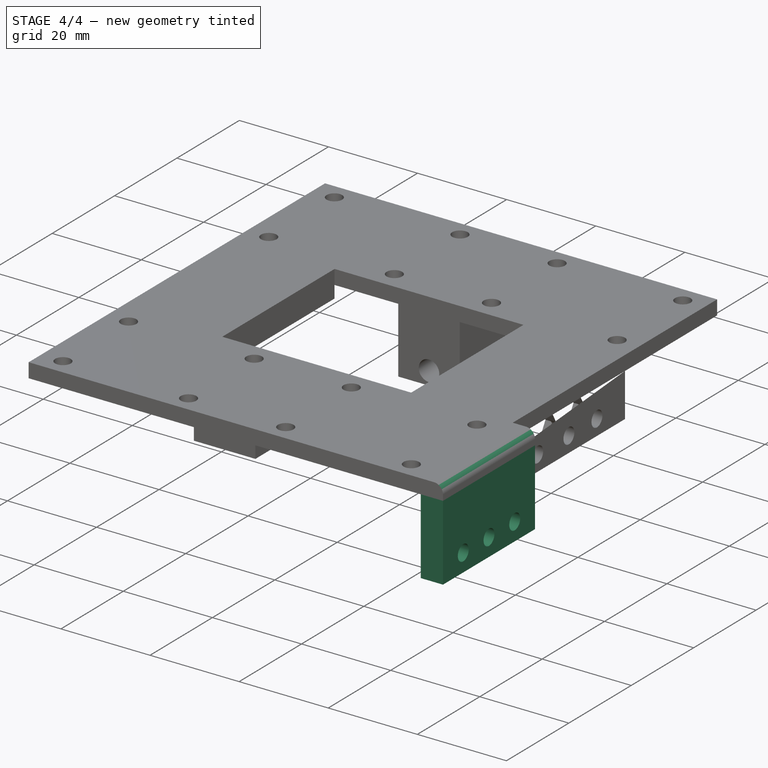
[diagram: stage 4 of 4 — iso view after this stage's code; geometry added in this stage tinted green]
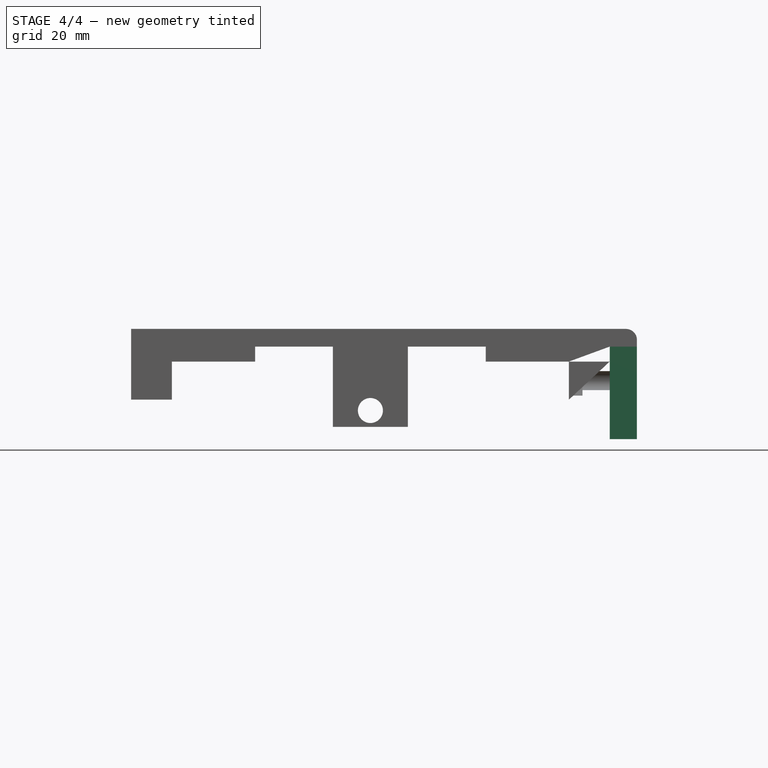
[diagram: stage 4 of 4 — front view after this stage's code; geometry added in this stage tinted green]
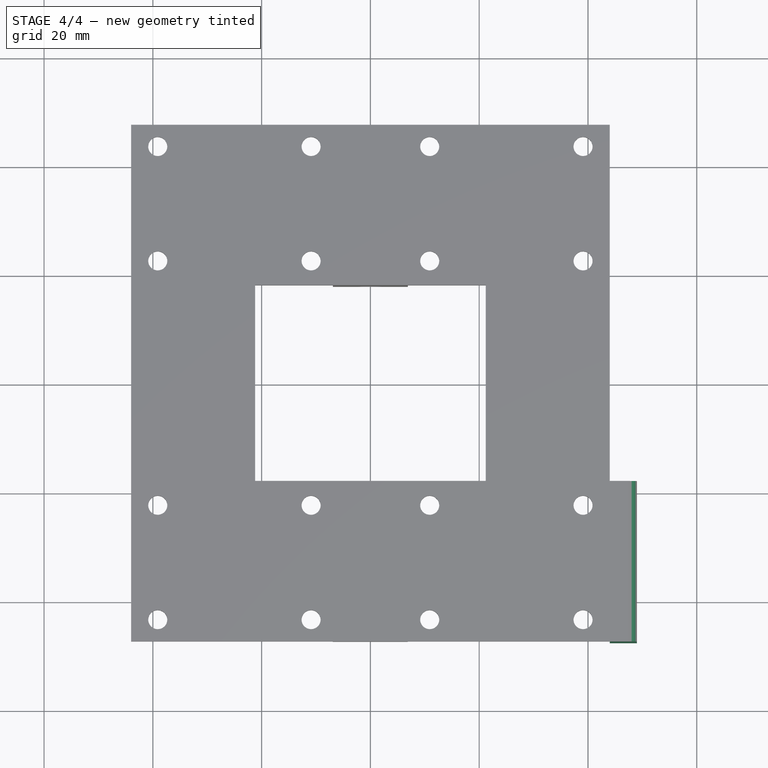
[diagram: stage 4 of 4 — top view after this stage's code; geometry added in this stage tinted green]
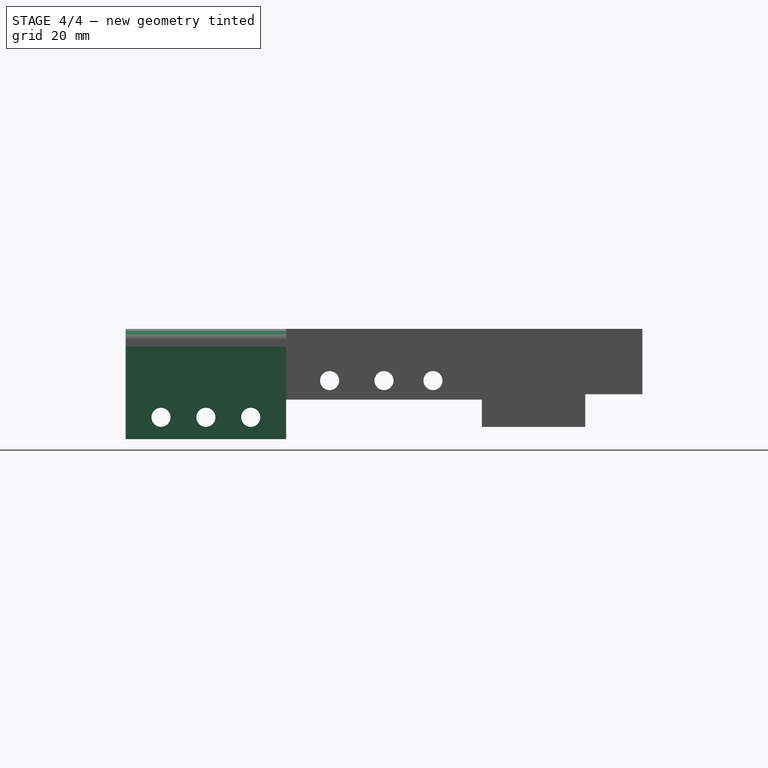
[diagram: stage 4 of 4 — right view after this stage's code; geometry added in this stage tinted green]
FEATURE [Sketcher::SketchObject] Sketch022
  ExternalGeometry = -> [Pad003]
  MapMode = 5
  Placement = pos=(0,0,2.75) rot=(1,0,0;3.14159rad)
  Support = -> [Pad003]
  sketch-geometry (4):
    g0: LineSegment StartX=44 StartY=18 StartZ=0 EndX=49 EndY=18 EndZ=0
    g1: LineSegment StartX=49 StartY=18 StartZ=0 EndX=49 EndY=47.5 EndZ=0
    g2: LineSegment StartX=49 StartY=47.5 StartZ=0 EndX=44 EndY=47.5 EndZ=0
    g3: LineSegment StartX=44 StartY=47.5 StartZ=0 EndX=44 EndY=18 EndZ=0
  constraints (10):
    c: Coincident(g0,g1)
    c: Coincident(g1,g2)
    c: Coincident(g2,g3)
    c: Coincident(g3,g0)
    c: Horizontal(g0)
    c: Horizontal(g2)
    c: Vertical(g1)
    c: Vertical(g3)
    c: Coincident(g0,g-4)
    c: Coincident(g1,g-3)
FEATURE [PartDesign::Pad] Pad004  label="Z-sensor mount base002"
  BaseFeature = -> Pad003
  Length = 17
  Length2 = 100
  Profile = -> Sketch022
  Type = 0
FEATURE [Sketcher::SketchObject] Sketch023
  ExternalGeometry = -> [Pad004]
  MapMode = 5
  Placement = pos=(49,0,0) rot=(0.57735,0.57735,0.57735;2.0944rad)
  Support = -> [Pad004]
  sketch-geometry (3):
    g0: Circle CenterX=-41 CenterY=-10.25 CenterZ=0 NormalX=0 NormalY=0 NormalZ=1 AngleXU=0 Radius=1.75
    g1: Circle CenterX=-24.5 CenterY=-10.25 CenterZ=0 NormalX=0 NormalY=0 NormalZ=1 AngleXU=0 Radius=1.75
    g2: Circle CenterX=-32.75 CenterY=-10.25 CenterZ=0 NormalX=0 NormalY=0 NormalZ=1 AngleXU=0 Radius=1.75
  constraints (9):
    c: Radius(g0) = 1.75
    c: Equal(g0,g1)
    c: Equal(g0,g2)
    c: DistanceX(g-4,g2) = 14.75
    c: DistanceY(g-4,g2) = 4
    c: DistanceY(g-4,g1) = 4
    c: DistanceY(g-4,g0) = 4
    c: DistanceX(g1,g-4) = 6.5
    c: DistanceX(g-4,g0) = 6.5
FEATURE [PartDesign::Pocket] Pocket006  label="Z-sensor mount holes"
  BaseFeature = -> Pad004
  Length = 5
  Profile = -> Sketch023
  Type = 0
FEATURE [Sketcher::SketchObject] Sketch024
  ExternalGeometry = -> [Pocket006]
  MapMode = 5
  Placement = pos=(44,0,0) rot=(0.57735,-0.57735,-0.57735;2.0944rad)
  Support = -> [Pocket006]
  sketch-geometry (21):
    g0: LineSegment StartX=26.1 StartY=-13.0213 StartZ=0 EndX=27.7 EndY=-10.25 EndZ=0
    g1: LineSegment StartX=27.7 StartY=-10.25 StartZ=0 EndX=26.1 EndY=-7.47872 EndZ=0
    g2: LineSegment StartX=26.1 StartY=-7.47872 StartZ=0 EndX=22.9 EndY=-7.47872 EndZ=0
    g3: LineSegment StartX=22.9 StartY=-7.47872 StartZ=0 EndX=21.3 EndY=-10.25 EndZ=0
    g4: LineSegment StartX=21.3 StartY=-10.25 StartZ=0 EndX=22.9 EndY=-13.0213 EndZ=0
    g5: LineSegment StartX=22.9 StartY=-13.0213 StartZ=0 EndX=26.1 EndY=-13.0213 EndZ=0
    g6: Circle [constr] CenterX=24.5 CenterY=-10.25 CenterZ=0 NormalX=0 NormalY=0 NormalZ=1 AngleXU=0 Radius=3.2
    g7: LineSegment StartX=42.6 StartY=-13.0213 StartZ=0 EndX=44.2 EndY=-10.25 EndZ=0
    g8: LineSegment StartX=44.2 StartY=-10.25 StartZ=0 EndX=42.6 EndY=-7.47872 EndZ=0
    g9: LineSegment StartX=42.6 StartY=-7.47872 StartZ=0 EndX=39.4 EndY=-7.47872 EndZ=0
    g10: LineSegment StartX=39.4 StartY=-7.47872 StartZ=0 EndX=37.8 EndY=-10.25 EndZ=0
    g11: LineSegment StartX=37.8 StartY=-10.25 StartZ=0 EndX=39.4 EndY=-13.0213 EndZ=0
    g12: LineSegment StartX=39.4 StartY=-13.0213 StartZ=0 EndX=42.6 EndY=-13.0213 EndZ=0
    g13: Circle [constr] CenterX=41 CenterY=-10.25 CenterZ=0 NormalX=0 NormalY=0 NormalZ=1 AngleXU=0 Radius=3.2
    g14: LineSegment StartX=35.95 StartY=-10.25 StartZ=0 EndX=34.35 EndY=-7.47872 EndZ=0
    g15: LineSegment StartX=34.35 StartY=-7.47872 StartZ=0 EndX=31.15 EndY=-7.47872 EndZ=0
    g16: LineSegment StartX=31.15 StartY=-7.47872 StartZ=0 EndX=29.55 EndY=-10.25 EndZ=0
    g17: LineSegment StartX=29.55 StartY=-10.25 StartZ=0 EndX=31.15 EndY=-13.0213 EndZ=0
    g18: LineSegment StartX=31.15 StartY=-13.0213 StartZ=0 EndX=34.35 EndY=-13.0213 EndZ=0
    g19: LineSegment StartX=34.35 StartY=-13.0213 StartZ=0 EndX=35.95 EndY=-10.25 EndZ=0
    g20: Circle [constr] CenterX=32.75 CenterY=-10.25 CenterZ=0 NormalX=0 NormalY=0 NormalZ=1 AngleXU=0 Radius=3.2
  constraints (48):
    c: Coincident(g0,g1)
    c: Coincident(g1,g2)
    c: Coincident(g2,g3)
    c: Coincident(g3,g4)
    c: Coincident(g4,g5)
    c: Coincident(g5,g0)
    c: Equal(g0, g1-g5) x5
    c: PointOnObject(g0,g6)
    c: PointOnObject(g1,g6)
    c: PointOnObject(g2,g6)
    c: PointOnObject(g3,g6)
    c: PointOnObject(g4,g6)
    c: PointOnObject(g5,g6)
    c: Coincident(g7,g8)
    c: Coincident(g8,g9)
    c: Coincident(g9,g10)
    c: Coincident(g10,g11)
    c: Coincident(g11,g12)
    c: Coincident(g12,g7)
    c: Equal(g7, g8-g12) x5
    c: PointOnObject(g7,g13)
    c: PointOnObject(g8,g13)
    c: PointOnObject(g9,g13)
    c: PointOnObject(g10,g13)
    c: PointOnObject(g11,g13)
    c: PointOnObject(g12,g13)
    c: Coincident(g14,g15)
    c: Coincident(g15,g16)
    c: Coincident(g16,g17)
    c: Coincident(g17,g18)
    c: Coincident(g18,g19)
    c: Coincident(g19,g14)
    c: Equal(g14, g15-g19) x5
    c: PointOnObject(g14,g20)
    c: PointOnObject(g15,g20)
    c: PointOnObject(g16,g20)
    c: PointOnObject(g17,g20)
    c: PointOnObject(g18,g20)
    c: PointOnObject(g19,g20)
    c: Radius(g6) = 3.2
    c: Equal(g6,g13)
    c: Equal(g6,g20)
    c: Coincident(g6,g-3)
    c: Coincident(g20,g-4)
    c: Coincident(g13,g-5)
    c: Parallel(g2,g-1)
    c: Parallel(g-1,g15)
    c: Parallel(g15,g9)
FEATURE [PartDesign::Pocket] Pocket007  label="Z-sensor M3 nuts"
  BaseFeature = -> Pocket006
  Length = 2.5
  Profile = -> Sketch024
  Type = 0
FEATURE [PartDesign::Fillet] Fillet
  Base = -> Pocket007 [Edge160]
  BaseFeature = -> Pocket007
  Radius = 2
FEATURE [PartDesign::Body] Body
  Group = -> [Sketch013,Pad,Sketch,Pocket,Sketch014,Pad001,Sketch015,Pocket001,Sketch016,Pocket002,Sketch017,Pocket003,Sketch018,Pad002,Sketch019,Pocket004,Sketch020,Pocket005,Sketch021,Pad003,Sketch022,Pad004,Sketch023,Pocket006,Sketch024,Pocket007,Fillet]
  Origin = -> Origin
  Tip = -> Fillet
FEATURE [Part::FeaturePython] Nut  # Fasteners workbench fastener (typed FeaturePython)
  baseObject = -> Fillet [Edge71]
  diameter = 0
  invert = false
  matchOuter = false
  offset = 0
  thread = false
  type = 1
FEATURE [Part::FeaturePython] Nut001  # Fasteners workbench fastener (typed FeaturePython)
  baseObject = -> Fillet [Edge71]
  diameter = 0
  invert = false
  matchOuter = false
  offset = 0
  thread = false
  type = 1
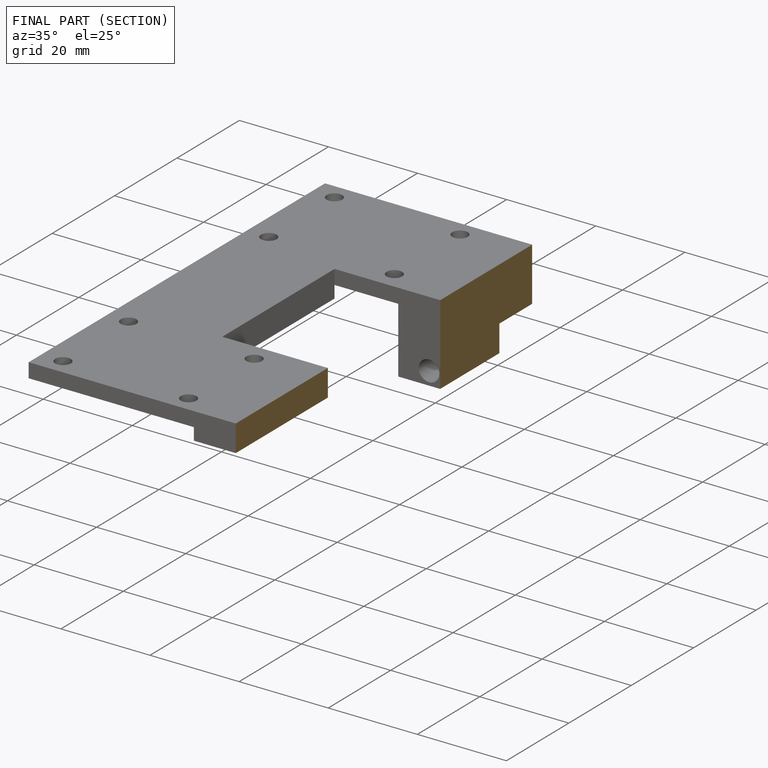
[diagram: finished part — half-section view (interior)]
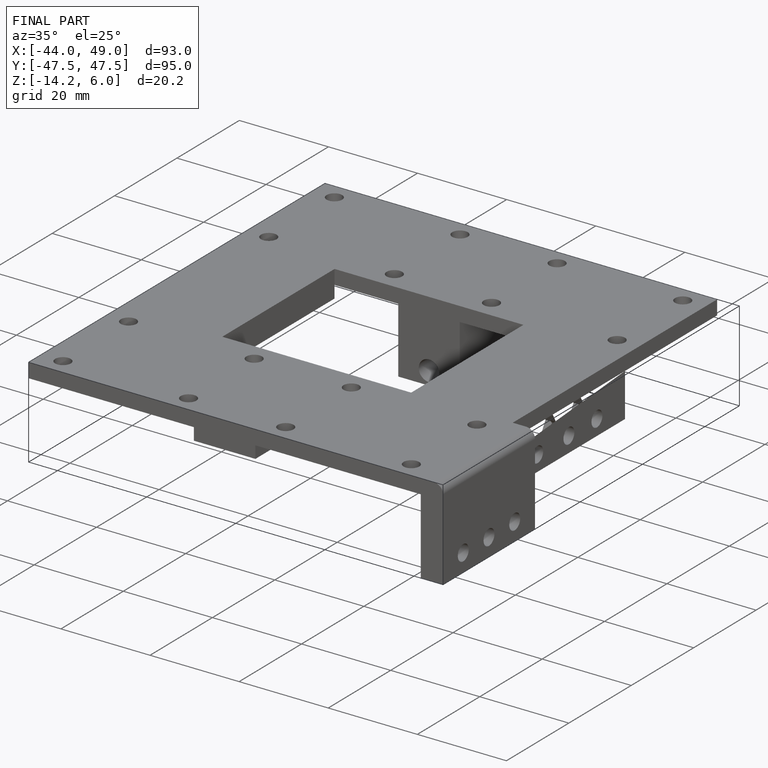
[diagram: finished part — iso view with bounding-box wireframe]
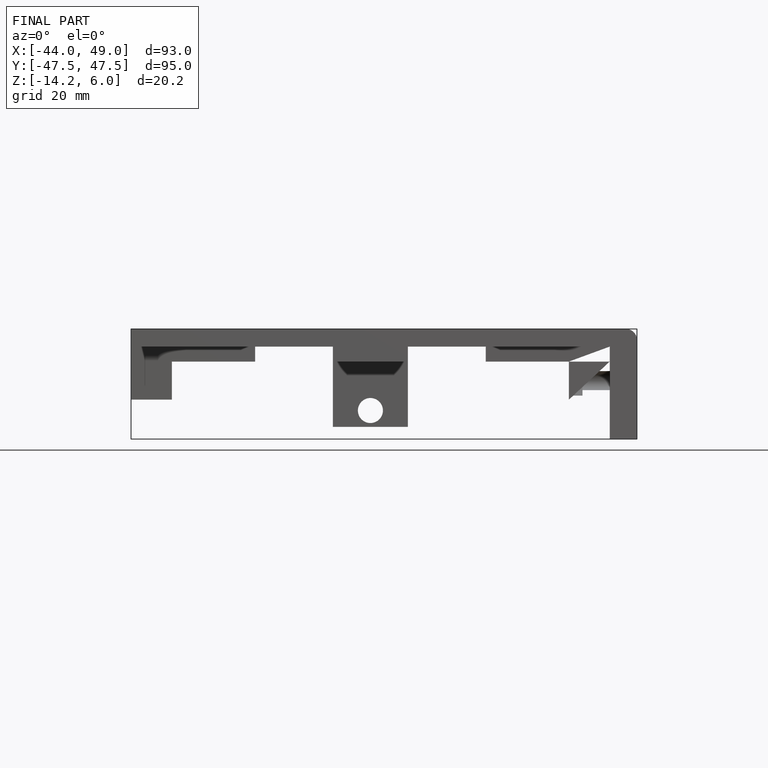
[diagram: finished part — front view with bounding-box wireframe]
